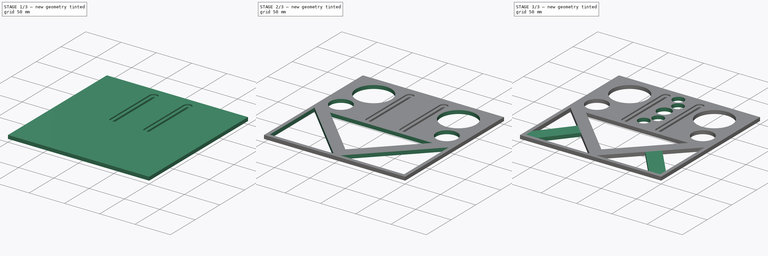
[diagram: build sequence overview — one tinted view per stage of 3, left to right]
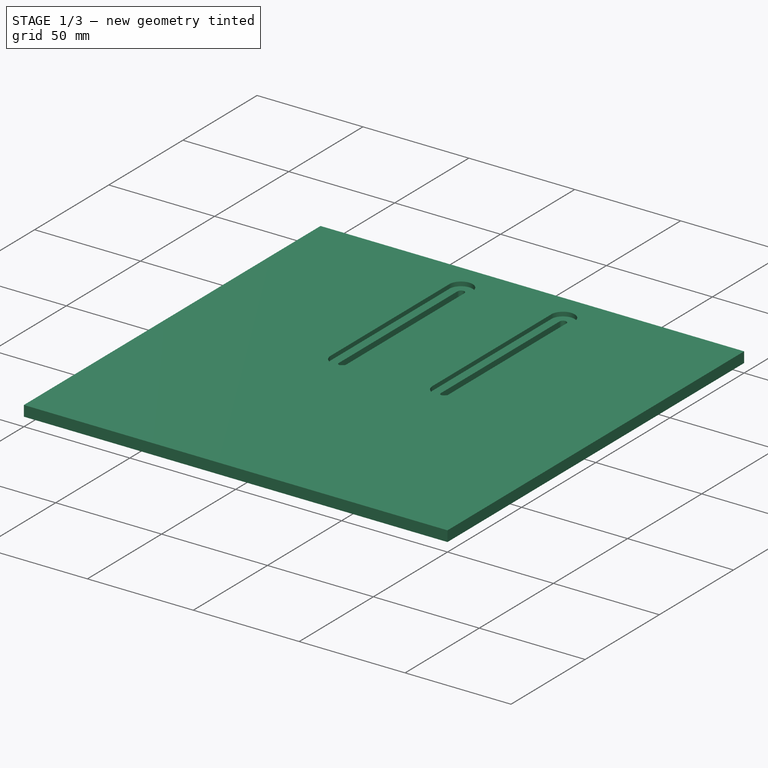
[diagram: stage 1 of 3 — iso view after this stage's code; geometry added in this stage tinted green]
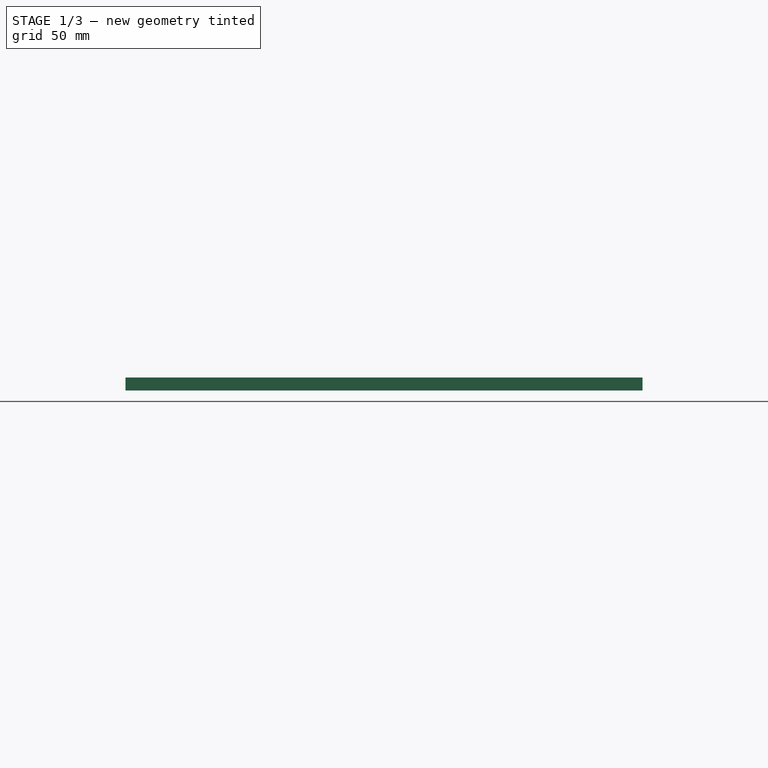
[diagram: stage 1 of 3 — front view after this stage's code; geometry added in this stage tinted green]
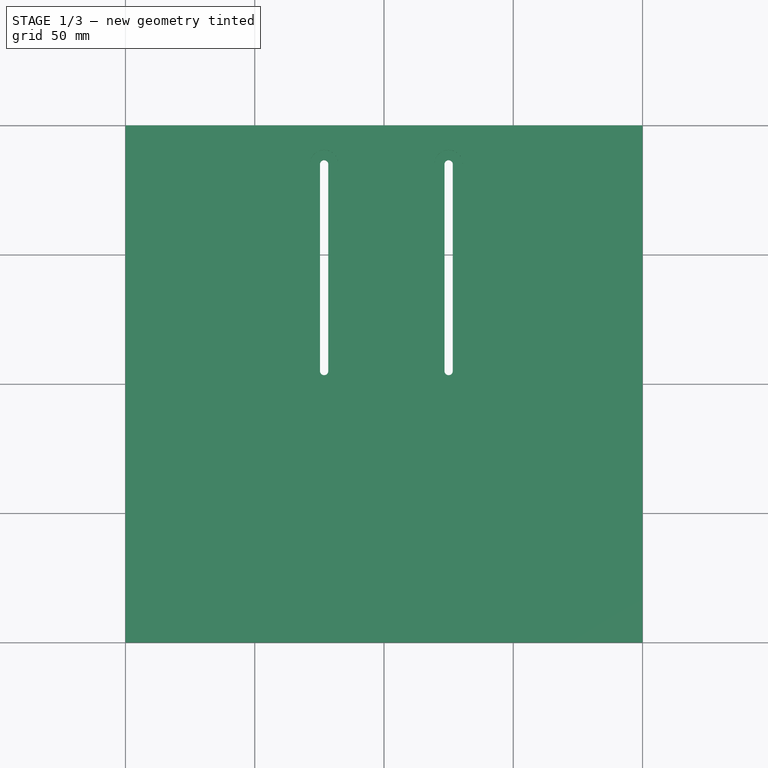
[diagram: stage 1 of 3 — top view after this stage's code; geometry added in this stage tinted green]
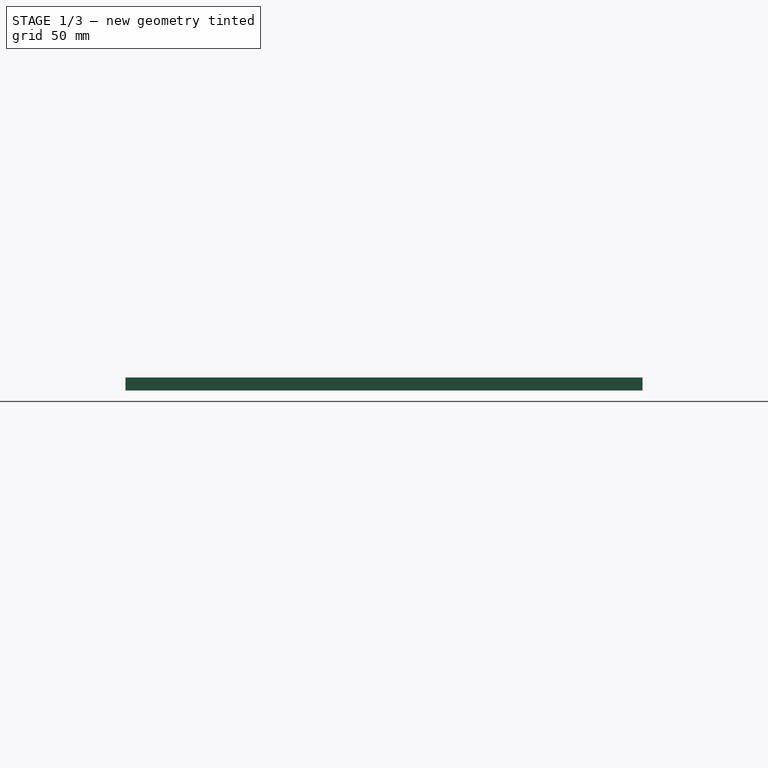
[diagram: stage 1 of 3 — right view after this stage's code; geometry added in this stage tinted green]
FCSTD DOCUMENT  (FreeCAD 0.20R29410 (Git))
Label: Tisch
License: All rights reserved
LicenseURL: http://en.wikipedia.org/wiki/All_rights_reserved
objects: Sketcher::SketchObject×6, PartDesign::Pad×3, PartDesign::Pocket×3, PartDesign::Body×1
note: 19 computed .brp shape members not serialized (recipe doc carries the construction recipe); baked Part::Feature solids carry a one-line shape summary decoded from their .brp

FEATURE [Sketcher::SketchObject] Sketch
  FullyConstrained = false
  MapMode = 5
  Support = -> [XY_Plane]
  sketch-geometry (15):
    g0: LineSegment StartX=-100 StartY=100 StartZ=0 EndX=-100 EndY=-100 EndZ=0
    g1: LineSegment StartX=-100 StartY=-100 StartZ=0 EndX=100 EndY=-100 EndZ=0
    g2: LineSegment StartX=100 StartY=-100 StartZ=0 EndX=100 EndY=100 EndZ=0
    g3: LineSegment StartX=100 StartY=100 StartZ=0 EndX=-100 EndY=100 EndZ=0
    g4: GeomPoint X=0 Y=0 Z=0
    g5: LineSegment StartX=-35 StartY=100 StartZ=0 EndX=-35 EndY=-100 EndZ=0
    g6: LineSegment StartX=35 StartY=100 StartZ=0 EndX=35 EndY=-100 EndZ=0
    g7: ArcOfCircle CenterX=-23.1542 CenterY=85 CenterZ=0 NormalX=0 NormalY=0 NormalZ=1 AngleXU=0 Radius=5.5 StartAngle=0 EndAngle=3.14159
    g8: ArcOfCircle CenterX=-23.1542 CenterY=5 CenterZ=0 NormalX=0 NormalY=0 NormalZ=1 AngleXU=0 Radius=5.5 StartAngle=3.14159 EndAngle=6.28319
    g9: LineSegment StartX=-28.6542 StartY=85 StartZ=0 EndX=-28.6542 EndY=5 EndZ=0
    g10: LineSegment StartX=-17.6542 StartY=5 StartZ=0 EndX=-17.6542 EndY=85 EndZ=0
    g11: ArcOfCircle CenterX=25 CenterY=85 CenterZ=0 NormalX=0 NormalY=0 NormalZ=1 AngleXU=0 Radius=5.5 StartAngle=-9e-16 EndAngle=3.14159
    g12: LineSegment StartX=19.5 StartY=5 StartZ=0 EndX=19.5 EndY=85 EndZ=0
    g13: LineSegment StartX=30.5 StartY=85 StartZ=0 EndX=30.5 EndY=5 EndZ=0
    g14: ArcOfCircle CenterX=25 CenterY=5 CenterZ=0 NormalX=0 NormalY=0 NormalZ=1 AngleXU=0 Radius=5.5 StartAngle=3.14159 EndAngle=6.28319
  constraints (34):
    c: Coincident(g0,g1)
    c: Coincident(g1,g2)
    c: Coincident(g2,g3)
    c: Coincident(g3,g0)
    c: Horizontal(g1)
    c: Horizontal(g3)
    c: Vertical(g0)
    c: Vertical(g2)
    c: Symmetric(g1,g0,g4)
    c: Coincident(g4,g-1)
    c: Equal(g3,g2)
    c: DistanceX(g3,g3) = 200
    c: PointOnObject(g5,g3)
    c: PointOnObject(g5,g1)
    c: Vertical(g5)
    c: DistanceX(g5,g4) = 35
    c: Vertical(g6)
    c: DistanceX(g4,g6) = 35
    c: Tangent(g7,g9) = -1.5708
    c: Tangent(g9,g8) = -1.5708
    c: Tangent(g8,g10) = -1.5708
    c: Tangent(g10,g7) = -1.5708
    c: Equal(g7,g8)
    c: Vertical(g9)
    c: Radius(g8) = 5.5
    c: DistanceY(g9,g9) = 80
    c: Tangent(g11,g13) = 1.5708
    c: Tangent(g13,g14) = 1.5708
    c: Tangent(g14,g12) = 1.5708
    c: Tangent(g12,g11) = 1.5708
    c: Equal(g11,g14)
    c: Vertical(g13)
    c: Radius(g14) = 5.5
    c: DistanceX(g4,g14) = 25
FEATURE [PartDesign::Pad] Pad
  Direction = (0,0,1)
  Length = 5
  Length2 = 10
  Profile = -> Sketch
  ReferenceAxis = -> Sketch [N_Axis]
  Type = 0
FEATURE [Sketcher::SketchObject] Sketch001
  ExternalGeometry = -> [Pad]
  FullyConstrained = false
  MapMode = 5
  Support = -> [XY_Plane]
  sketch-geometry (16):
    g0: ArcOfCircle CenterX=25 CenterY=85 CenterZ=0 NormalX=0 NormalY=0 NormalZ=1 AngleXU=0 Radius=1.6 StartAngle=1e-15 EndAngle=3.14159
    g1: ArcOfCircle CenterX=25 CenterY=5 CenterZ=0 NormalX=0 NormalY=0 NormalZ=1 AngleXU=0 Radius=1.6 StartAngle=3.14159 EndAngle=6.28319
    g2: LineSegment StartX=23.4 StartY=85 StartZ=0 EndX=23.4 EndY=5 EndZ=0
    g3: LineSegment StartX=26.6 StartY=5 StartZ=0 EndX=26.6 EndY=85 EndZ=0
    g4: ArcOfCircle CenterX=-23.1542 CenterY=85 CenterZ=0 NormalX=0 NormalY=0 NormalZ=1 AngleXU=0 Radius=1.6 StartAngle=1.1e-15 EndAngle=3.14159
    g5: ArcOfCircle CenterX=-23.1542 CenterY=5 CenterZ=0 NormalX=0 NormalY=0 NormalZ=1 AngleXU=0 Radius=1.6 StartAngle=3.14159 EndAngle=6.28319
    g6: LineSegment StartX=-24.7542 StartY=85 StartZ=0 EndX=-24.7542 EndY=5 EndZ=0
    g7: LineSegment StartX=-21.5542 StartY=5 StartZ=0 EndX=-21.5542 EndY=85 EndZ=0
    g8: LineSegment StartX=-38.9267 StartY=93.9947 StartZ=0 EndX=-10.491 EndY=93.9947 EndZ=0
    g9: LineSegment StartX=-10.491 StartY=93.9947 StartZ=0 EndX=-10.491 EndY=-2.21653 EndZ=0
    g10: LineSegment StartX=-10.491 StartY=-2.21653 StartZ=0 EndX=-38.9267 EndY=-2.21653 EndZ=0
    g11: LineSegment StartX=-38.9267 StartY=-2.21653 StartZ=0 EndX=-38.9267 EndY=93.9947 EndZ=0
    g12: LineSegment StartX=44.1078 StartY=-2.21653 StartZ=0 EndX=12.5987 EndY=-2.21653 EndZ=0
    g13: LineSegment StartX=12.5987 StartY=-2.21653 StartZ=0 EndX=12.5987 EndY=93.1358 EndZ=0
    g14: LineSegment StartX=12.5987 StartY=93.1358 StartZ=0 EndX=44.1078 EndY=93.1358 EndZ=0
    g15: LineSegment StartX=44.1078 StartY=93.1358 StartZ=0 EndX=44.1078 EndY=-2.21653 EndZ=0
  constraints (35):
    c: Tangent(g0,g2) = -1.5708
    c: Tangent(g2,g1) = -1.5708
    c: Tangent(g1,g3) = -1.5708
    c: Tangent(g3,g0) = -1.5708
    c: Equal(g0,g1)
    c: Vertical(g2)
    c: Radius(g1) = 1.6
    c: DistanceY(g3,g3) = 80
    c: Coincident(g1,g-5)
    c: Tangent(g4,g6) = -1.5708
    c: Tangent(g6,g5) = -1.5708
    c: Tangent(g5,g7) = -1.5708
    c: Tangent(g7,g4) = -1.5708
    c: Equal(g4,g5)
    c: Vertical(g6)
    c: Radius(g4) = 1.6
    c: DistanceY(g7,g7) = 80
    c: Coincident(g5,g-10)
    c: Coincident(g8,g9)
    c: Coincident(g9,g10)
    c: Coincident(g10,g11)
    c: Coincident(g11,g8)
    c: Horizontal(g8)
    c: Horizontal(g10)
    c: Vertical(g9)
    c: Vertical(g11)
    c: Coincident(g12,g13)
    c: Coincident(g13,g14)
    c: Coincident(g14,g15)
    c: Coincident(g15,g12)
    c: Horizontal(g12)
    c: Horizontal(g14)
    c: Vertical(g13)
    c: Vertical(g15)
    c: Block(g0)
FEATURE [PartDesign::Pad] Pad001
  BaseFeature = -> Pad
  Direction = (0,0,1)
  Length = 3
  Length2 = 10
  Profile = -> Sketch001
  ReferenceAxis = -> Sketch001 [N_Axis]
  Type = 0
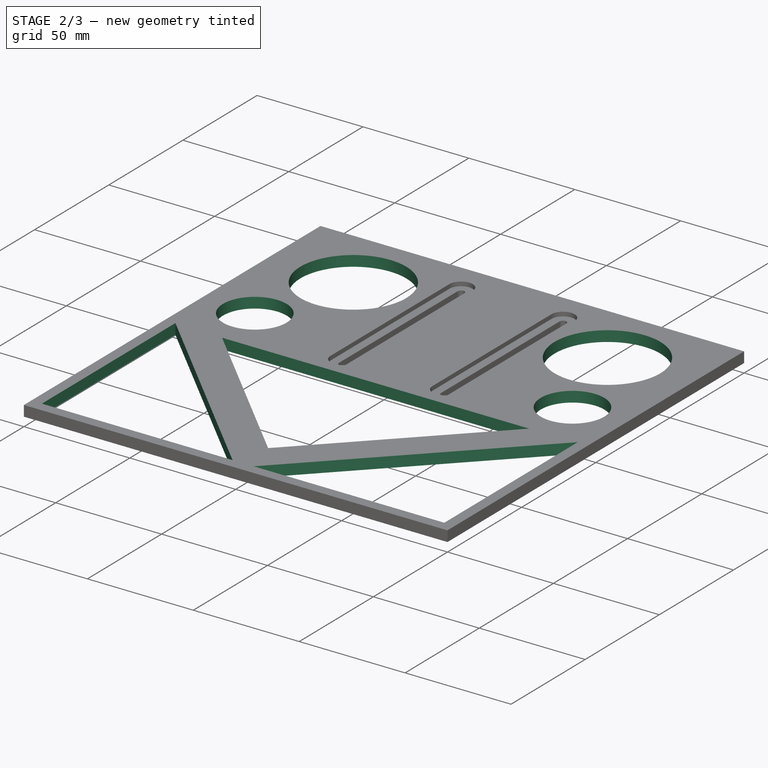
[diagram: stage 2 of 3 — iso view after this stage's code; geometry added in this stage tinted green]
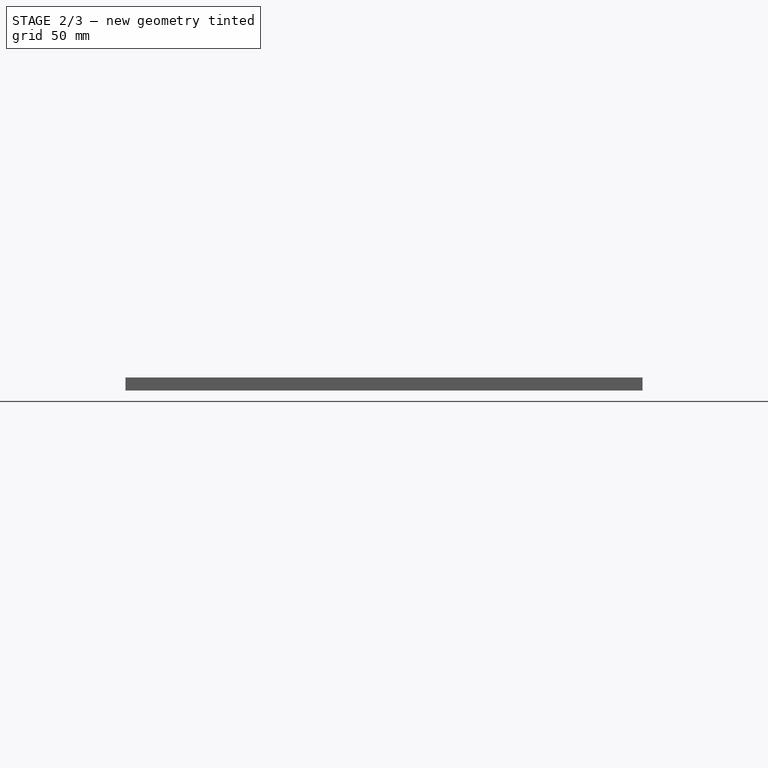
[diagram: stage 2 of 3 — front view after this stage's code; geometry added in this stage tinted green]
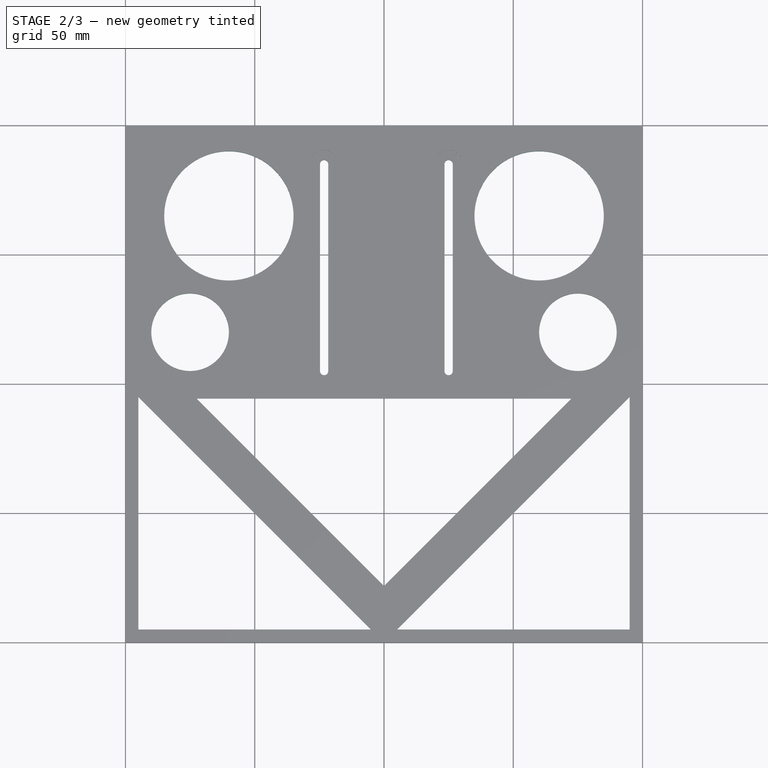
[diagram: stage 2 of 3 — top view after this stage's code; geometry added in this stage tinted green]
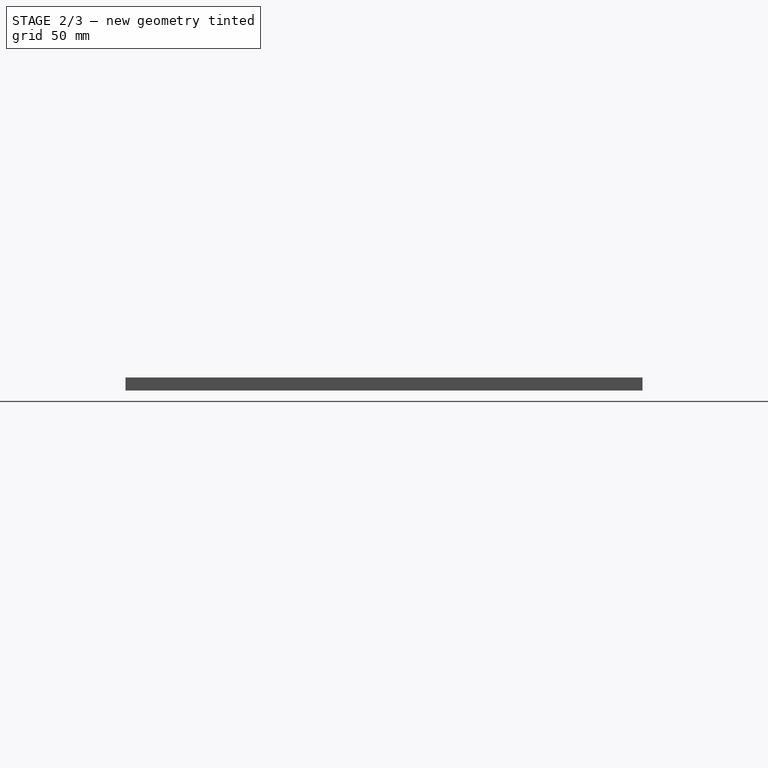
[diagram: stage 2 of 3 — right view after this stage's code; geometry added in this stage tinted green]
FEATURE [Sketcher::SketchObject] Sketch002
  ExternalGeometry = -> [Pad001]
  FullyConstrained = false
  MapMode = 5
  Placement = pos=(0,0,5) rot=(0,0,1;0rad)
  Support = -> [Pad001]
  sketch-geometry (9):
    g0: LineSegment StartX=-95 StartY=-5 StartZ=0 EndX=-95 EndY=-95 EndZ=0
    g1: LineSegment StartX=-95 StartY=-95 StartZ=0 EndX=-5 EndY=-95 EndZ=0
    g2: LineSegment StartX=-95 StartY=-5 StartZ=0 EndX=-5 EndY=-95 EndZ=0
    g3: LineSegment StartX=94.9948 StartY=-4.99544 StartZ=0 EndX=94.9948 EndY=-95.0046 EndZ=0
    g4: LineSegment StartX=94.9948 StartY=-4.99544 StartZ=0 EndX=5.00519 EndY=-95.0046 EndZ=0
    g5: LineSegment StartX=94.9948 StartY=-95.0046 StartZ=0 EndX=5.00519 EndY=-95.0046 EndZ=0
    g6: LineSegment StartX=0 StartY=-78.141 StartZ=0 EndX=-72.5079 EndY=-5.63314 EndZ=0
    g7: LineSegment StartX=-72.5079 StartY=-5.63314 StartZ=0 EndX=72.4921 EndY=-5.63314 EndZ=0
    g8: LineSegment StartX=0 StartY=-78.141 StartZ=0 EndX=72.4921 EndY=-5.63314 EndZ=0
  constraints (24):
    c: Vertical(g0)
    c: Coincident(g1,g0)
    c: Horizontal(g1)
    c: Coincident(g2,g0)
    c: Coincident(g2,g1)
    c: DistanceY(g0,g0) = 90
    c: DistanceX(g1,g1) = 90
    c: DistanceY(g-4,g0) = 5
    c: DistanceX(g-4,g0) = 5
    c: Vertical(g3)
    c: Coincident(g5,g3)
    c: Horizontal(g5)
    c: Coincident(g4,g3)
    c: Coincident(g4,g5)
    c: PointOnObject(g6,g-2)
    c: Coincident(g7,g6)
    c: Horizontal(g7)
    c: Coincident(g8,g6)
    c: Coincident(g8,g7)
    c: Parallel(g8,g4)
    c: Parallel(g6,g2)
    c: DistanceX(g7,g7) = 145
    c: DistanceY(g-4) = -100
    c: DistanceY(g-4,g6) = 21.859
FEATURE [PartDesign::Pocket] Pocket
  BaseFeature = -> Pad001
  Direction = (0,0,-1)
  Length = 5
  Length2 = 5
  Profile = -> Sketch002
  ReferenceAxis = -> Sketch002 [N_Axis]
  Type = 0
FEATURE [Sketcher::SketchObject] Sketch003
  ExternalGeometry = -> [Pocket]
  FullyConstrained = false
  MapMode = 5
  Placement = pos=(0,0,5) rot=(0,0,1;0rad)
  Support = -> [Pocket]
  sketch-geometry (4):
    g0: Circle CenterX=-60 CenterY=65 CenterZ=0 NormalX=0 NormalY=0 NormalZ=1 AngleXU=0 Radius=25
    g1: Circle CenterX=-75 CenterY=20 CenterZ=0 NormalX=0 NormalY=0 NormalZ=1 AngleXU=0 Radius=15
    g2: Circle CenterX=75 CenterY=20 CenterZ=0 NormalX=0 NormalY=0 NormalZ=1 AngleXU=0 Radius=15
    g3: Circle CenterX=60 CenterY=65 CenterZ=0 NormalX=0 NormalY=0 NormalZ=1 AngleXU=0 Radius=25
  constraints (8):
    c: Radius(g0) = 25
    c: Radius(g1) = 15
    c: DistanceX(g-3,g0) = 40
    c: DistanceX(g-3,g1) = 25
    c: DistanceY(g0,g-3) = 35
    c: DistanceY(g1,g-3) = 80
    c: Radius(g3) = 25
    c: Radius(g2) = 15
FEATURE [PartDesign::Pocket] Pocket001
  BaseFeature = -> Pocket
  Direction = (0,0,-1)
  Length = 5
  Length2 = 5
  Profile = -> Sketch003
  ReferenceAxis = -> Sketch003 [N_Axis]
  Type = 0
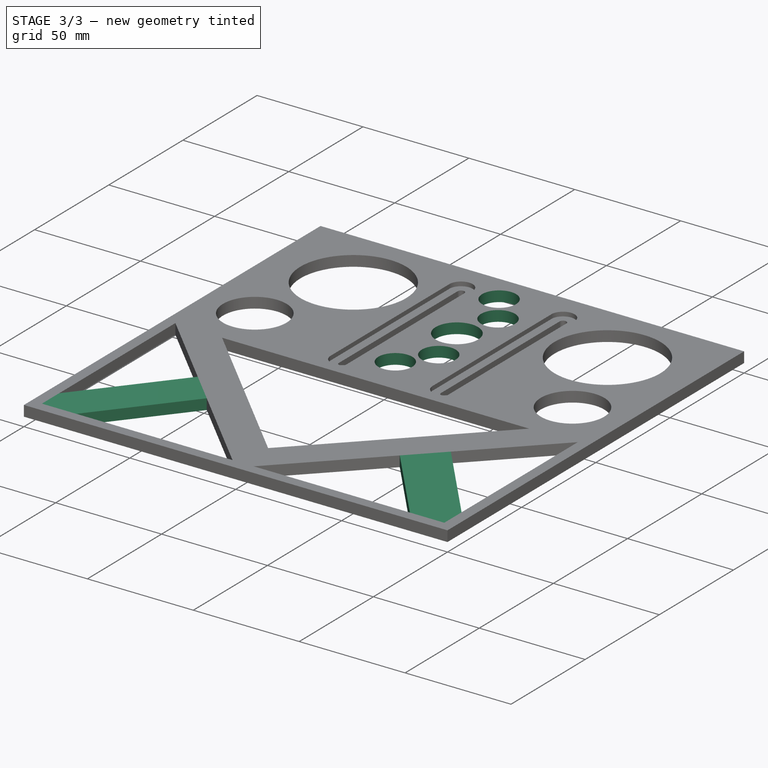
[diagram: stage 3 of 3 — iso view after this stage's code; geometry added in this stage tinted green]
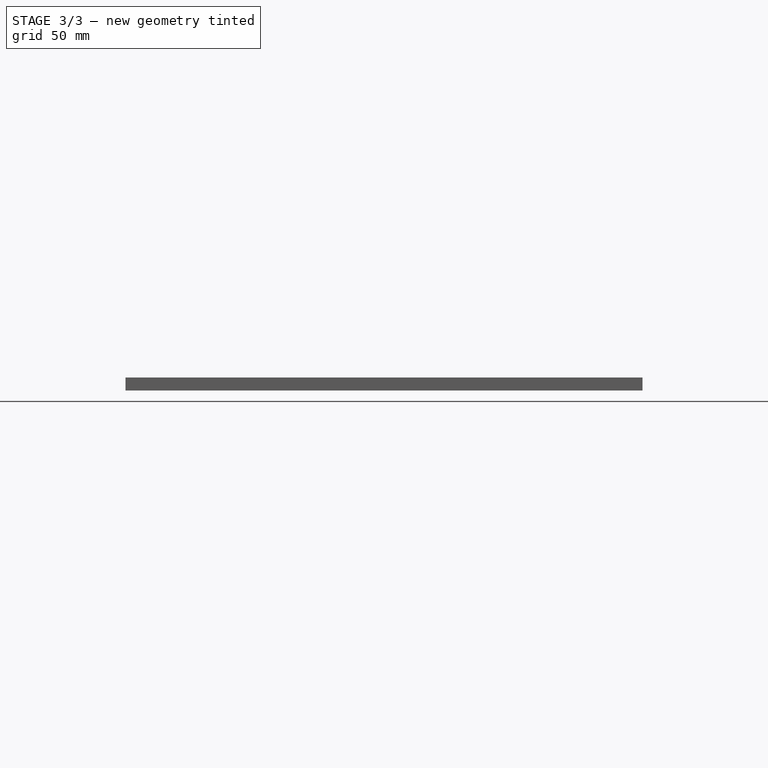
[diagram: stage 3 of 3 — front view after this stage's code; geometry added in this stage tinted green]
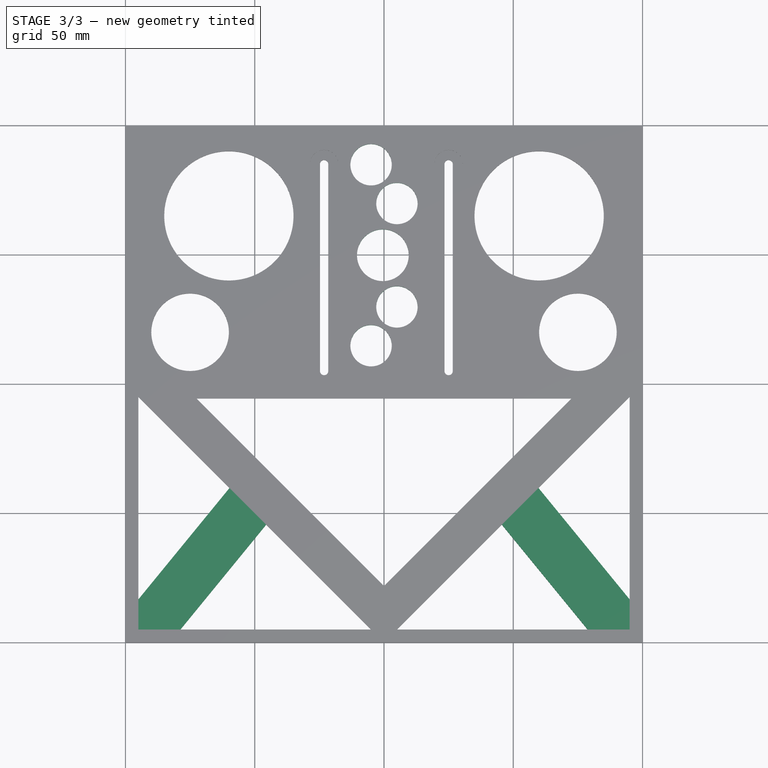
[diagram: stage 3 of 3 — top view after this stage's code; geometry added in this stage tinted green]
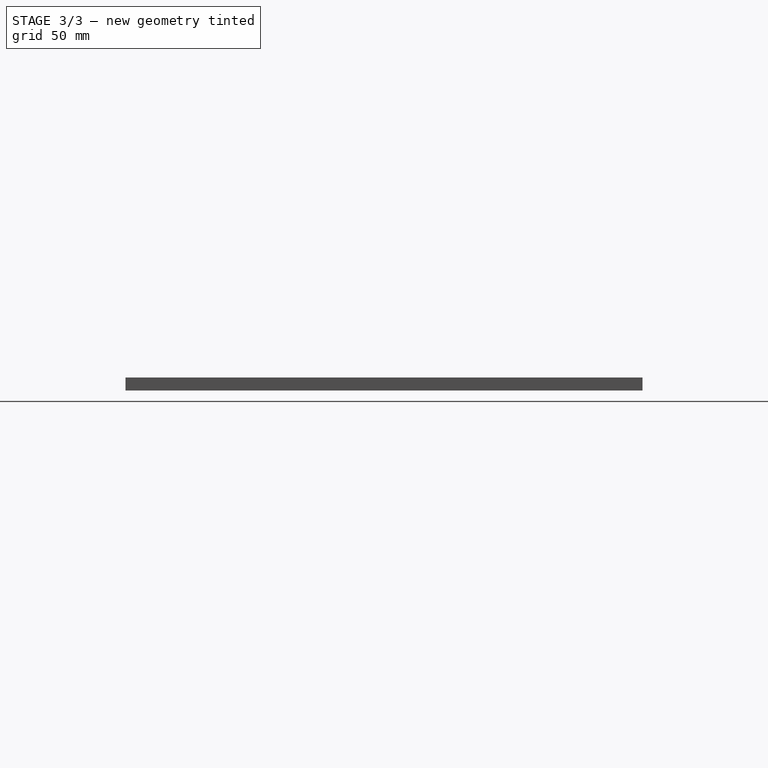
[diagram: stage 3 of 3 — right view after this stage's code; geometry added in this stage tinted green]
FEATURE [Sketcher::SketchObject] Sketch004
  ExternalGeometry = -> [Pocket001]
  FullyConstrained = false
  MapMode = 5
  Support = -> [XY_Plane]
  sketch-geometry (8):
    g0: Circle CenterX=-5 CenterY=14.7713 CenterZ=0 NormalX=0 NormalY=0 NormalZ=1 AngleXU=0 Radius=8
    g1: Circle CenterX=5 CenterY=29.7713 CenterZ=0 NormalX=0 NormalY=0 NormalZ=1 AngleXU=0 Radius=8
    g2: LineSegment StartX=-100 StartY=100 StartZ=0 EndX=100.172 EndY=0 EndZ=0
    g3: LineSegment StartX=-99.9699 StartY=0 StartZ=0 EndX=100 EndY=100 EndZ=0
    g4: LineSegment StartX=-0.442374 StartY=49.7713 StartZ=0 EndX=-100.137 EndY=49.7713 EndZ=0
    g5: Circle CenterX=-0.442374 CenterY=49.7713 CenterZ=0 NormalX=0 NormalY=0 NormalZ=1 AngleXU=0 Radius=10
    g6: Circle CenterX=-5 CenterY=84.7713 CenterZ=0 NormalX=0 NormalY=0 NormalZ=1 AngleXU=0 Radius=8
    g7: Circle CenterX=5 CenterY=69.7713 CenterZ=0 NormalX=0 NormalY=0 NormalZ=1 AngleXU=0 Radius=8
  constraints (18):
    c: Radius(g0) = 8
    c: Equal(g0,g1)
    c: DistanceY(g0,g1) = 15
    c: DistanceX(g-3,g0) = 95
    c: DistanceX(g1,g-3) = 95
    c: Coincident(g2,g-3)
    c: PointOnObject(g2,g-1)
    c: PointOnObject(g3,g-1)
    c: Coincident(g3,g-3)
    c: PointOnObject(g4,g3)
    c: Horizontal(g4)
    c: Coincident(g5,g4)
    c: Radius(g5) = 10
    c: Radius(g6) = 8
    c: Equal(g6,g7)
    c: DistanceY(g7,g6) = 15
    c: DistanceY(g5,g7) = 20
    c: DistanceY(g1,g5) = 20
FEATURE [PartDesign::Pocket] Pocket002
  BaseFeature = -> Pocket001
  Direction = (0,0,-1)
  Length = 5
  Length2 = 5
  Profile = -> Sketch004
  ReferenceAxis = -> Sketch004 [N_Axis]
  Reversed = true
  Type = 0
FEATURE [Sketcher::SketchObject] Sketch005
  FullyConstrained = false
  MapMode = 5
  Support = -> [XY_Plane]
  sketch-geometry (10):
    g0: LineSegment StartX=-97.7786 StartY=-86.7495 StartZ=0 EndX=-95.5726 EndY=-99.6074 EndZ=0
    g1: LineSegment StartX=-82.5269 StartY=-99.6074 StartZ=0 EndX=-42.874 EndY=-51.1339 EndZ=0
    g2: LineSegment StartX=-57.1641 StartY=-37.1003 StartZ=0 EndX=-97.7786 EndY=-86.7495 EndZ=0
    g3: LineSegment StartX=-95.5726 StartY=-99.6074 StartZ=0 EndX=-82.5269 EndY=-99.6074 EndZ=0
    g4: LineSegment StartX=-57.1641 StartY=-37.1003 StartZ=0 EndX=-42.874 EndY=-51.1339 EndZ=0
    g5: LineSegment StartX=57.1641 StartY=-37.1003 StartZ=0 EndX=42.874 EndY=-51.1339 EndZ=0
    g6: LineSegment StartX=82.5269 StartY=-99.6074 StartZ=0 EndX=42.874 EndY=-51.1339 EndZ=0
    g7: LineSegment StartX=57.1641 StartY=-37.1003 StartZ=0 EndX=97.7786 EndY=-86.7495 EndZ=0
    g8: LineSegment StartX=97.7786 StartY=-86.7495 StartZ=0 EndX=95.5726 EndY=-99.6074 EndZ=0
    g9: LineSegment StartX=95.5726 StartY=-99.6074 StartZ=0 EndX=82.5269 EndY=-99.6074 EndZ=0
  constraints (16):
    c: Coincident(g2,g0)
    c: Parallel(g1,g2)
    c: Coincident(g3,g0)
    c: Coincident(g3,g1)
    c: Horizontal(g3)
    c: Equal(g0,g3)
    c: Coincident(g4,g2)
    c: Coincident(g4,g1)
    c: Coincident(g7,g8)
    c: Parallel(g6,g7)
    c: Coincident(g9,g8)
    c: Coincident(g9,g6)
    c: Horizontal(g9)
    c: Equal(g8,g9)
    c: Coincident(g5,g7)
    c: Coincident(g5,g6)
FEATURE [PartDesign::Pad] Pad002
  BaseFeature = -> Pocket002
  Direction = (0,0,1)
  Length = 5
  Length2 = 10
  Profile = -> Sketch005
  ReferenceAxis = -> Sketch005 [N_Axis]
  Type = 0
FEATURE [PartDesign::Body] Body
  Group = -> [Sketch,Pad,Sketch001,Pad001,Sketch002,Pocket,Sketch003,Pocket001,Sketch004,Pocket002,Sketch005,Pad002]
  Origin = -> Origin
  Tip = -> Pad002
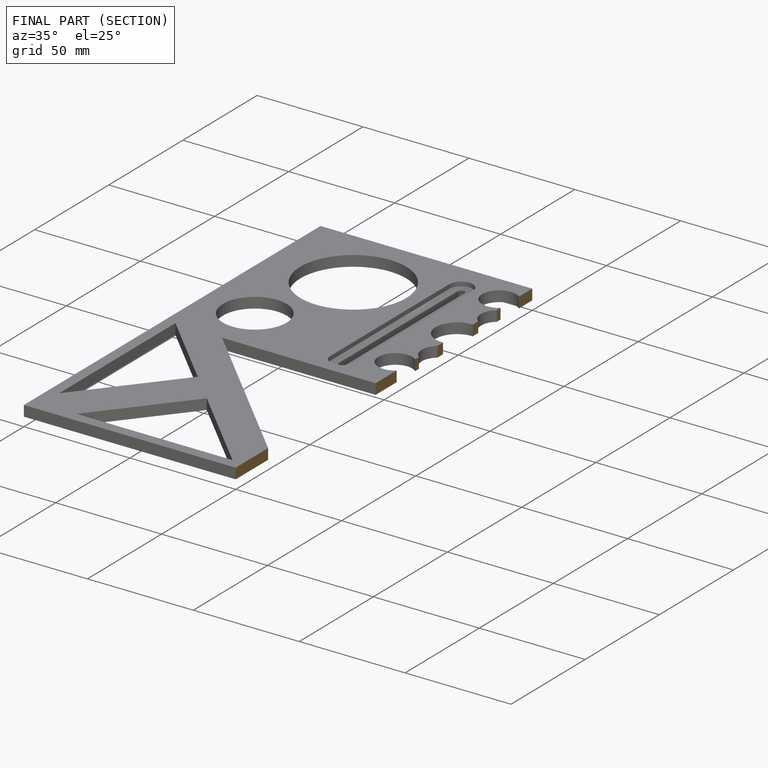
[diagram: finished part — half-section view (interior)]
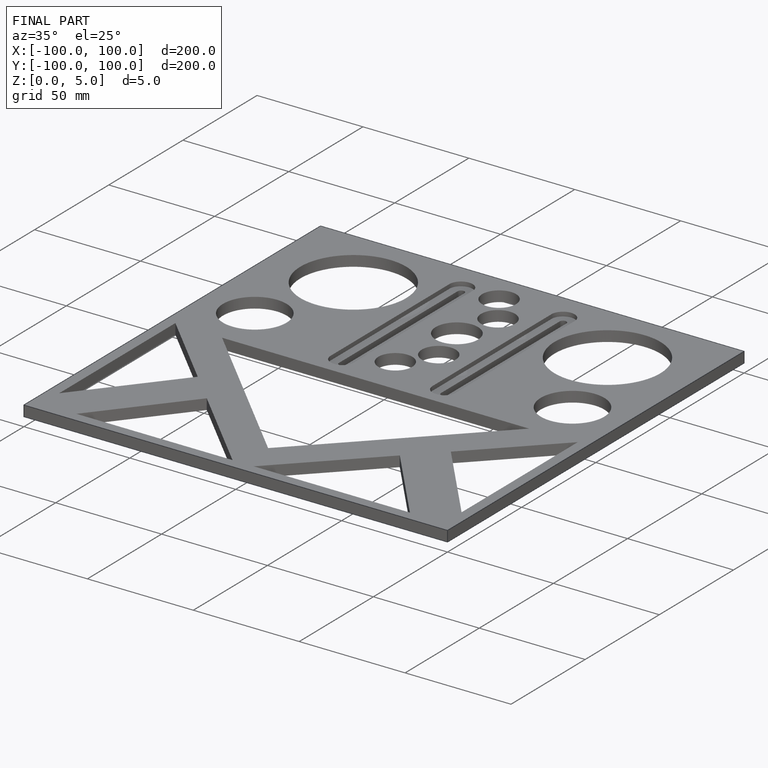
[diagram: finished part — iso view with bounding-box wireframe]
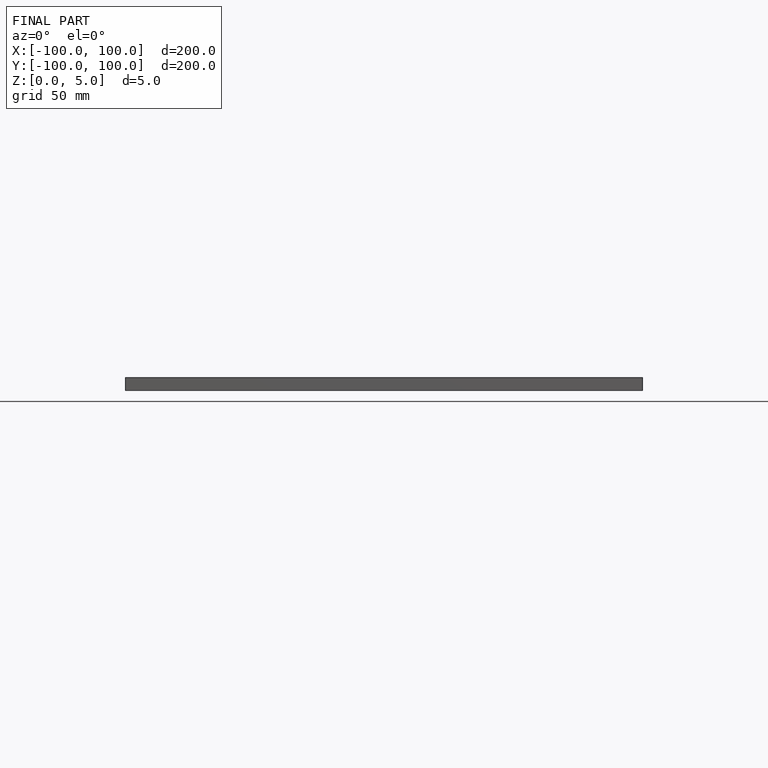
[diagram: finished part — front view with bounding-box wireframe]
